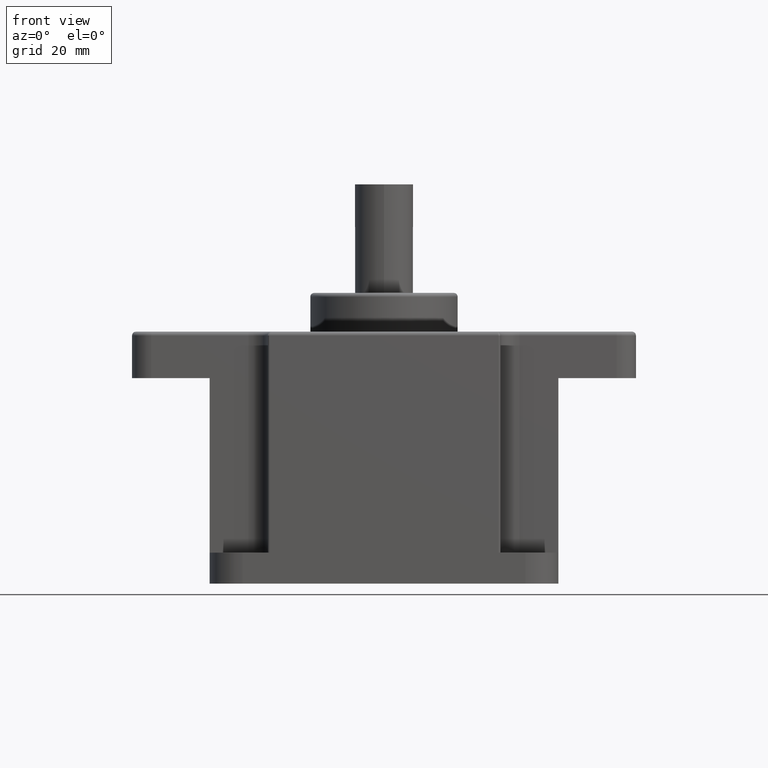
[diagram: clean part render]
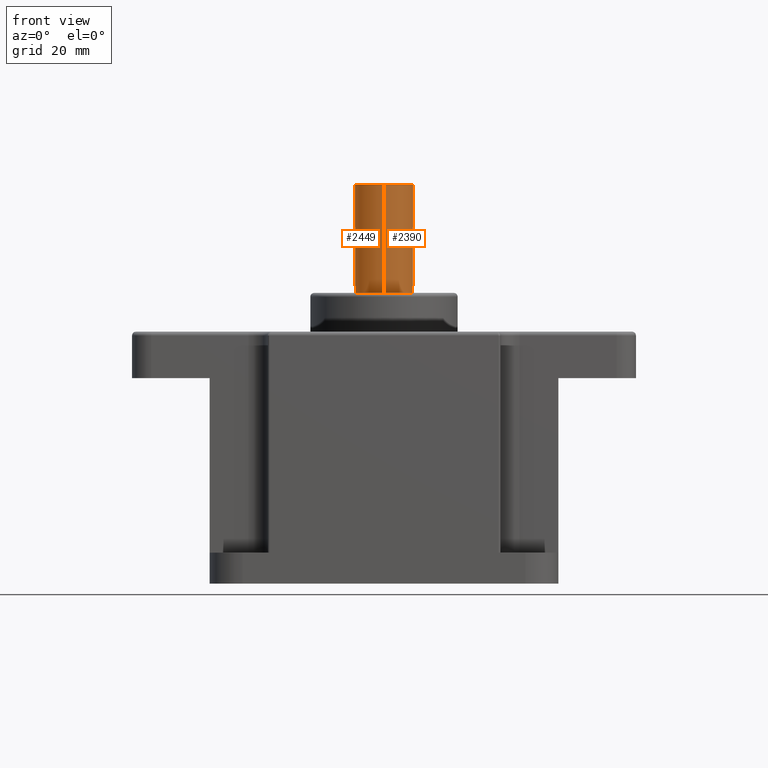
[diagram: same view with one multi-face feature highlighted, each face labeled with its STEP entity id]
A machine part, front view. The highlighted faces form ONE feature: a constant-radius fillet chain: 2 tangent blend faces with common blend radius 7.5 mm. The faces share edges in the B-rep.
Their STEP definitions:
[1] entity #2390 (Cylinder):
#1681 = EDGE_CURVE ( 'NONE', #2460, #2393, #6868, .T. ) ;
#2337 = ORIENTED_EDGE ( 'NONE', *, *, #2395, .T. ) ;
#2376 = EDGE_CURVE ( 'NONE', #2393, #2402, #8159, .T. ) ;
#2382 = EDGE_LOOP ( 'NONE', ( #2337, #2391, #2461, #2389, #2387, #2408 ) ) ;
#2387 = ORIENTED_EDGE ( 'NONE', *, *, #1681, .T. ) ;
#2389 = ORIENTED_EDGE ( 'NONE', *, *, #2462, .F. ) ;
#2390 = ADVANCED_FACE ( 'NONE', ( #8149 ), #8204, .T. ) ;
#2391 = ORIENTED_EDGE ( 'NONE', *, *, #2392, .T. ) ;
#2392 = EDGE_CURVE ( 'NONE', #2403, #2394, #8196, .T. ) ;
#2393 = VERTEX_POINT ( 'NONE', #8198 ) ;
#2394 = VERTEX_POINT ( 'NONE', #8191 ) ;
#2395 = EDGE_CURVE ( 'NONE', #2402, #2403, #8153, .T. ) ;
#2402 = VERTEX_POINT ( 'NONE', #8237 ) ;
#2403 = VERTEX_POINT ( 'NONE', #8231 ) ;
#2408 = ORIENTED_EDGE ( 'NONE', *, *, #2376, .T. ) ;
#2458 = EDGE_CURVE ( 'NONE', #2459, #2394, #8314, .T. ) ;
#2459 = VERTEX_POINT ( 'NONE', #8330 ) ;
#2460 = VERTEX_POINT ( 'NONE', #8321 ) ;
#2461 = ORIENTED_EDGE ( 'NONE', *, *, #2458, .F. ) ;
#2462 = EDGE_CURVE ( 'NONE', #2460, #2459, #8333, .T. ) ;
#6868 = B_SPLINE_CURVE_WITH_KNOTS ( 'NONE', 3,
 ( #6927, #6926, #6925, #6924, #6923, #6922, #6921, #6920, #6919, #6918, #6917, #6916, #6915, #6914, #6913, #6912, #6911, #6910, #6909, #6908, #6907, #6906 ),
 .UNSPECIFIED., .F., .F.,
 ( 4, 2, 2, 2, 2, 2, 2, 2, 2, 2, 4 ),
 ( 0.5004272629064311400, 0.5628738550431232600, 0.5940971511114692100, 0.6253204471798152800, 0.6877670393165074000, 0.7502136314531995300, 0.8126602235898916500, 0.8438835196582378200, 0.8594951676924128500, 0.8751068157265878800, 1.000000000000000000 ),
 .UNSPECIFIED. ) ;
#6906 = CARTESIAN_POINT ( 'NONE',  ( 76.00000000000000000, 2.951425698533411100, 6.894859414523008200 ) ) ;
#6907 = CARTESIAN_POINT ( 'NONE',  ( 75.62390929456763900, 2.952744967656674400, 6.894294685852040400 ) ) ;
#6908 = CARTESIAN_POINT ( 'NONE',  ( 75.25686864073340100, 2.877601231127073300, 6.927984866739797600 ) ) ;
#6909 = CARTESIAN_POINT ( 'NONE',  ( 74.85412921321764700, 2.703570961673760700, 6.995794074267498900 ) ) ;
#6910 = CARTESIAN_POINT ( 'NONE',  ( 74.81292052457234800, 2.684550456797711000, 7.003118922543190900 ) ) ;
#6911 = CARTESIAN_POINT ( 'NONE',  ( 74.72883074230540500, 2.643343220615768500, 7.018776418749920000 ) ) ;
#6912 = CARTESIAN_POINT ( 'NONE',  ( 74.68740842799854800, 2.621786845075670900, 7.026863454120593200 ) ) ;
#6913 = CARTESIAN_POINT ( 'NONE',  ( 74.56500921555745300, 2.554233620222940100, 7.051822152379659600 ) ) ;
#6914 = CARTESIAN_POINT ( 'NONE',  ( 74.48590004790285900, 2.505352828414066500, 7.069393794528553900 ) ) ;
#6915 = CARTESIAN_POINT ( 'NONE',  ( 74.25604346685776100, 2.346958736151956600, 7.124203138502201300 ) ) ;
#6916 = CARTESIAN_POINT ( 'NONE',  ( 74.11276697538579600, 2.225689430745100900, 7.163574897948538300 ) ) ;
#6917 = CARTESIAN_POINT ( 'NONE',  ( 73.84613645089132200, 1.950664318856906400, 7.243300868788163700 ) ) ;
#6918 = CARTESIAN_POINT ( 'NONE',  ( 73.73027109168410200, 1.804831337608739500, 7.281417181279247000 ) ) ;
#6919 = CARTESIAN_POINT ( 'NONE',  ( 73.52506667233363700, 1.487479850591649300, 7.352812796415192600 ) ) ;
#6920 = CARTESIAN_POINT ( 'NONE',  ( 73.43712319650518300, 1.317394964321570800, 7.385674141427459800 ) ) ;
#6921 = CARTESIAN_POINT ( 'NONE',  ( 73.32719608353274100, 1.045159555656393500, 7.427386451980442700 ) ) ;
#6922 = CARTESIAN_POINT ( 'NONE',  ( 73.29425276539170400, 0.9513349566087546700, 7.440013275087631300 ) ) ;
#6923 = CARTESIAN_POINT ( 'NONE',  ( 73.23856285782240100, 0.7645719058983301300, 7.461518983012572500 ) ) ;
#6924 = CARTESIAN_POINT ( 'NONE',  ( 73.21534983141367500, 0.6704783155965270400, 7.470574841457287000 ) ) ;
#6925 = CARTESIAN_POINT ( 'NONE',  ( 73.15960653431515900, 0.3862463450872556900, 7.492458361239369100 ) ) ;
#6926 = CARTESIAN_POINT ( 'NONE',  ( 73.14097204575310200, 0.1941521368723748700, 7.499999995940505900 ) ) ;
#6927 = CARTESIAN_POINT ( 'NONE',  ( 73.14086526133300500, 1.567436932505962200E-007, 7.499999655916370000 ) ) ;
#8144 = CARTESIAN_POINT ( 'NONE',  ( -8.282907852175711100, 0.0000000000000000000, 0.0000000000000000000 ) ) ;
#8149 = FACE_OUTER_BOUND ( 'NONE', #2382, .T. ) ;
#8153 = CIRCLE ( 'NONE', #8184, 7.500000000000000000 ) ;
#8154 = DIRECTION ( 'NONE',  ( 1.000000000000000000, 0.0000000000000000000, 0.0000000000000000000 ) ) ;
#8155 = VECTOR ( 'NONE', #8154, 1000.000000000000000 ) ;
#8156 = CARTESIAN_POINT ( 'NONE',  ( -8.282907852175711100, 2.951425698533408900, 6.894859414523009100 ) ) ;
#8159 = LINE ( 'NONE', #8156, #8155 ) ;
#8181 = DIRECTION ( 'NONE',  ( 0.0000000000000000000, 0.0000000000000000000, 1.000000000000000000 ) ) ;
#8182 = DIRECTION ( 'NONE',  ( -1.000000000000000000, -0.0000000000000000000, -0.0000000000000000000 ) ) ;
#8183 = CARTESIAN_POINT ( 'NONE',  ( 98.50000000000000000, 0.0000000000000000000, 0.0000000000000000000 ) ) ;
#8184 = AXIS2_PLACEMENT_3D ( 'NONE', #8183, #8182, #8181 ) ;
#8189 = DIRECTION ( 'NONE',  ( -1.000000000000000000, -0.0000000000000000000, -0.0000000000000000000 ) ) ;
#8190 = VECTOR ( 'NONE', #8189, 1000.000000000000000 ) ;
#8191 = CARTESIAN_POINT ( 'NONE',  ( 68.50000000000000000, 9.184850993605147900E-016, -7.500000000000000000 ) ) ;
#8192 = DIRECTION ( 'NONE',  ( 0.0000000000000000000, 0.0000000000000000000, 1.000000000000000000 ) ) ;
#8193 = DIRECTION ( 'NONE',  ( -1.000000000000000000, -0.0000000000000000000, -0.0000000000000000000 ) ) ;
#8194 = AXIS2_PLACEMENT_3D ( 'NONE', #8144, #8193, #8192 ) ;
#8195 = CARTESIAN_POINT ( 'NONE',  ( -8.282907852175711100, 9.184850993605147900E-016, -7.500000000000000000 ) ) ;
#8196 = LINE ( 'NONE', #8195, #8190 ) ;
#8198 = CARTESIAN_POINT ( 'NONE',  ( 76.00000000000000000, 2.951425698533411100, 6.894859414523008200 ) ) ;
#8204 = CYLINDRICAL_SURFACE ( 'NONE', #8194, 7.500000000000000000 ) ;
#8231 = CARTESIAN_POINT ( 'NONE',  ( 98.50000000000000000, 9.184850993605147900E-016, -7.500000000000000000 ) ) ;
#8237 = CARTESIAN_POINT ( 'NONE',  ( 98.50000000000000000, 2.951425698533410200, 6.894859414523010000 ) ) ;
#8309 = DIRECTION ( 'NONE',  ( 0.0000000000000000000, 0.0000000000000000000, 1.000000000000000000 ) ) ;
#8310 = DIRECTION ( 'NONE',  ( -1.000000000000000000, -0.0000000000000000000, -0.0000000000000000000 ) ) ;
#8311 = CARTESIAN_POINT ( 'NONE',  ( 68.50000000000000000, 0.0000000000000000000, 0.0000000000000000000 ) ) ;
#8312 = AXIS2_PLACEMENT_3D ( 'NONE', #8311, #8310, #8309 ) ;
#8314 = CIRCLE ( 'NONE', #8312, 7.500000000000000000 ) ;
#8321 = CARTESIAN_POINT ( 'NONE',  ( 73.14086526133300500, 1.567436932505962200E-007, 7.499999655916370000 ) ) ;
#8330 = CARTESIAN_POINT ( 'NONE',  ( 68.50000000000000000, 0.0000000000000000000, 7.500000000000000000 ) ) ;
#8333 = LINE ( 'NONE', #8351, #8350 ) ;
#8349 = DIRECTION ( 'NONE',  ( -1.000000000000000000, -0.0000000000000000000, -0.0000000000000000000 ) ) ;
#8350 = VECTOR ( 'NONE', #8349, 1000.000000000000000 ) ;
#8351 = CARTESIAN_POINT ( 'NONE',  ( -8.282907852175711100, 0.0000000000000000000, 7.500000000000000000 ) ) ;
[2] entity #2449 (Cylinder):
#1725 = EDGE_LOOP ( 'NONE', ( #2451, #2381, #17093, #2452, #2244, #2329 ) ) ;
#2244 = ORIENTED_EDGE ( 'NONE', *, *, #2462, .T. ) ;
#2324 = EDGE_CURVE ( 'NONE', #2394, #2459, #7985, .T. ) ;
#2329 = ORIENTED_EDGE ( 'NONE', *, *, #2324, .F. ) ;
#2377 = VERTEX_POINT ( 'NONE', #8158 ) ;
#2379 = EDGE_CURVE ( 'NONE', #2403, #2380, #8079, .T. ) ;
#2380 = VERTEX_POINT ( 'NONE', #8150 ) ;
#2381 = ORIENTED_EDGE ( 'NONE', *, *, #2379, .T. ) ;
#2392 = EDGE_CURVE ( 'NONE', #2403, #2394, #8196, .T. ) ;
#2394 = VERTEX_POINT ( 'NONE', #8191 ) ;
#2403 = VERTEX_POINT ( 'NONE', #8231 ) ;
#2449 = ADVANCED_FACE ( 'NONE', ( #8281 ), #8276, .T. ) ;
#2451 = ORIENTED_EDGE ( 'NONE', *, *, #2392, .F. ) ;
#2452 = ORIENTED_EDGE ( 'NONE', *, *, #2454, .T. ) ;
#2453 = EDGE_CURVE ( 'NONE', #2380, #2377, #8332, .T. ) ;
#2454 = EDGE_CURVE ( 'NONE', #2377, #2460, #8317, .T. ) ;
#2459 = VERTEX_POINT ( 'NONE', #8330 ) ;
#2460 = VERTEX_POINT ( 'NONE', #8321 ) ;
#2462 = EDGE_CURVE ( 'NONE', #2460, #2459, #8333, .T. ) ;
#7770 = DIRECTION ( 'NONE',  ( 0.0000000000000000000, 0.0000000000000000000, 1.000000000000000000 ) ) ;
#7772 = DIRECTION ( 'NONE',  ( 0.0000000000000000000, 0.0000000000000000000, 1.000000000000000000 ) ) ;
#7778 = DIRECTION ( 'NONE',  ( -1.000000000000000000, -0.0000000000000000000, -0.0000000000000000000 ) ) ;
#7985 = CIRCLE ( 'NONE', #8041, 7.500000000000000000 ) ;
#8027 = CARTESIAN_POINT ( 'NONE',  ( 68.50000000000000000, 0.0000000000000000000, 0.0000000000000000000 ) ) ;
#8041 = AXIS2_PLACEMENT_3D ( 'NONE', #8027, #7778, #7772 ) ;
#8079 = CIRCLE ( 'NONE', #8163, 7.500000000000000000 ) ;
#8145 = DIRECTION ( 'NONE',  ( 0.0000000000000000000, 0.0000000000000000000, 1.000000000000000000 ) ) ;
#8146 = DIRECTION ( 'NONE',  ( -1.000000000000000000, -0.0000000000000000000, -0.0000000000000000000 ) ) ;
#8147 = CARTESIAN_POINT ( 'NONE',  ( 98.50000000000000000, 0.0000000000000000000, 0.0000000000000000000 ) ) ;
#8150 = CARTESIAN_POINT ( 'NONE',  ( 98.50000000000000000, -2.951425698533410600, 6.894859414523008200 ) ) ;
#8158 = CARTESIAN_POINT ( 'NONE',  ( 76.00000000000000000, -2.951425698533417700, 6.894859414523005500 ) ) ;
#8163 = AXIS2_PLACEMENT_3D ( 'NONE', #8147, #8146, #8145 ) ;
#8189 = DIRECTION ( 'NONE',  ( -1.000000000000000000, -0.0000000000000000000, -0.0000000000000000000 ) ) ;
#8190 = VECTOR ( 'NONE', #8189, 1000.000000000000000 ) ;
#8191 = CARTESIAN_POINT ( 'NONE',  ( 68.50000000000000000, 9.184850993605147900E-016, -7.500000000000000000 ) ) ;
#8195 = CARTESIAN_POINT ( 'NONE',  ( -8.282907852175711100, 9.184850993605147900E-016, -7.500000000000000000 ) ) ;
#8196 = LINE ( 'NONE', #8195, #8190 ) ;
#8231 = CARTESIAN_POINT ( 'NONE',  ( 98.50000000000000000, 9.184850993605147900E-016, -7.500000000000000000 ) ) ;
#8272 = DIRECTION ( 'NONE',  ( -1.000000000000000000, -0.0000000000000000000, -0.0000000000000000000 ) ) ;
#8276 = CYLINDRICAL_SURFACE ( 'NONE', #8280, 7.500000000000000000 ) ;
#8280 = AXIS2_PLACEMENT_3D ( 'NONE', #8297, #8272, #7770 ) ;
#8281 = FACE_OUTER_BOUND ( 'NONE', #1725, .T. ) ;
#8297 = CARTESIAN_POINT ( 'NONE',  ( -8.282907852175711100, 0.0000000000000000000, 0.0000000000000000000 ) ) ;
#8306 = CARTESIAN_POINT ( 'NONE',  ( 75.26218389700628100, -2.852880751422569400, 6.936284508727199600 ) ) ;
#8307 = CARTESIAN_POINT ( 'NONE',  ( 75.35345066472028500, -2.876795261230333400, 6.926360807983789900 ) ) ;
#8308 = CARTESIAN_POINT ( 'NONE',  ( 75.62846390911724400, -2.933847024489184100, 6.902480837100566400 ) ) ;
#8315 = CARTESIAN_POINT ( 'NONE',  ( 75.81342332705529000, -2.952318717447894900, 6.894477147269244100 ) ) ;
#8316 = CARTESIAN_POINT ( 'NONE',  ( 76.00000000000000000, -2.951425698533417700, 6.894859414523005500 ) ) ;
#8317 = B_SPLINE_CURVE_WITH_KNOTS ( 'NONE', 3,
 ( #8316, #8315, #8308, #8307, #8306, #8370, #8369, #8368, #8367, #8366, #8365, #8364, #8363, #8362, #8361, #8360, #8359, #8358, #8357, #8356 ),
 .UNSPECIFIED., .F., .F.,
 ( 4, 2, 2, 2, 2, 2, 2, 2, 2, 4 ),
 ( 0.0000000000000000000, 0.06255340786328800200, 0.09383011179493200300, 0.1094684637607561100, 0.1251068157265802200, 0.1876602235898889600, 0.2502136314531976900, 0.3127670393165064600, 0.3753204471798152200, 0.5004272629064311400 ),
 .UNSPECIFIED. ) ;
#8321 = CARTESIAN_POINT ( 'NONE',  ( 73.14086526133300500, 1.567436932505962200E-007, 7.499999655916370000 ) ) ;
#8322 = DIRECTION ( 'NONE',  ( -1.000000000000000000, -0.0000000000000000000, -0.0000000000000000000 ) ) ;
#8323 = VECTOR ( 'NONE', #8322, 1000.000000000000000 ) ;
#8324 = CARTESIAN_POINT ( 'NONE',  ( -8.282907852175711100, -2.951425698533408400, 6.894859414523009100 ) ) ;
#8330 = CARTESIAN_POINT ( 'NONE',  ( 68.50000000000000000, 0.0000000000000000000, 7.500000000000000000 ) ) ;
#8332 = LINE ( 'NONE', #8324, #8323 ) ;
#8333 = LINE ( 'NONE', #8351, #8350 ) ;
#8349 = DIRECTION ( 'NONE',  ( -1.000000000000000000, -0.0000000000000000000, -0.0000000000000000000 ) ) ;
#8350 = VECTOR ( 'NONE', #8349, 1000.000000000000000 ) ;
#8351 = CARTESIAN_POINT ( 'NONE',  ( -8.282907852175711100, 0.0000000000000000000, 7.500000000000000000 ) ) ;
#8356 = CARTESIAN_POINT ( 'NONE',  ( 73.14086526133300500, 1.567436932505962200E-007, 7.499999655916370000 ) ) ;
#8357 = CARTESIAN_POINT ( 'NONE',  ( 73.14065134328359400, -0.3889680023853279200, 7.500000008132871300 ) ) ;
#8358 = CARTESIAN_POINT ( 'NONE',  ( 73.21462297621720000, -0.7682411417323670200, 7.469756715640466300 ) ) ;
#8359 = CARTESIAN_POINT ( 'NONE',  ( 73.43674250892800600, -1.317972768287624600, 7.385615258238733100 ) ) ;
#8360 = CARTESIAN_POINT ( 'NONE',  ( 73.52375640005158200, -1.485784968605449800, 7.353151940529752300 ) ) ;
#8361 = CARTESIAN_POINT ( 'NONE',  ( 73.72867927860819700, -1.802842969397509700, 7.281906183214966100 ) ) ;
#8362 = CARTESIAN_POINT ( 'NONE',  ( 73.84576813663893800, -1.950053818245605800, 7.243435948861845800 ) ) ;
#8363 = CARTESIAN_POINT ( 'NONE',  ( 74.10920069020546900, -2.222238429936575600, 7.164616570328901100 ) ) ;
#8364 = CARTESIAN_POINT ( 'NONE',  ( 74.25414009194686600, -2.345213739553472000, 7.124782036159676800 ) ) ;
#8365 = CARTESIAN_POINT ( 'NONE',  ( 74.56164251566781300, -2.556935408725808500, 7.051569177323457000 ) ) ;
#8366 = CARTESIAN_POINT ( 'NONE',  ( 74.72567097065884000, -2.647206303472685400, 7.017750246159822700 ) ) ;
#8367 = CARTESIAN_POINT ( 'NONE',  ( 74.94355309331076900, -2.741253065117175100, 6.981113028461115800 ) ) ;
#8368 = CARTESIAN_POINT ( 'NONE',  ( 74.99010192730898400, -2.760042675000754300, 6.973700340595423000 ) ) ;
#8369 = CARTESIAN_POINT ( 'NONE',  ( 75.08056006751961300, -2.793894812415362900, 6.960207165408553100 ) ) ;
#8370 = CARTESIAN_POINT ( 'NONE',  ( 75.12589021606284200, -2.809571277413955000, 6.953887551513331800 ) ) ;
#17093 = ORIENTED_EDGE ( 'NONE', *, *, #2453, .T. ) ;